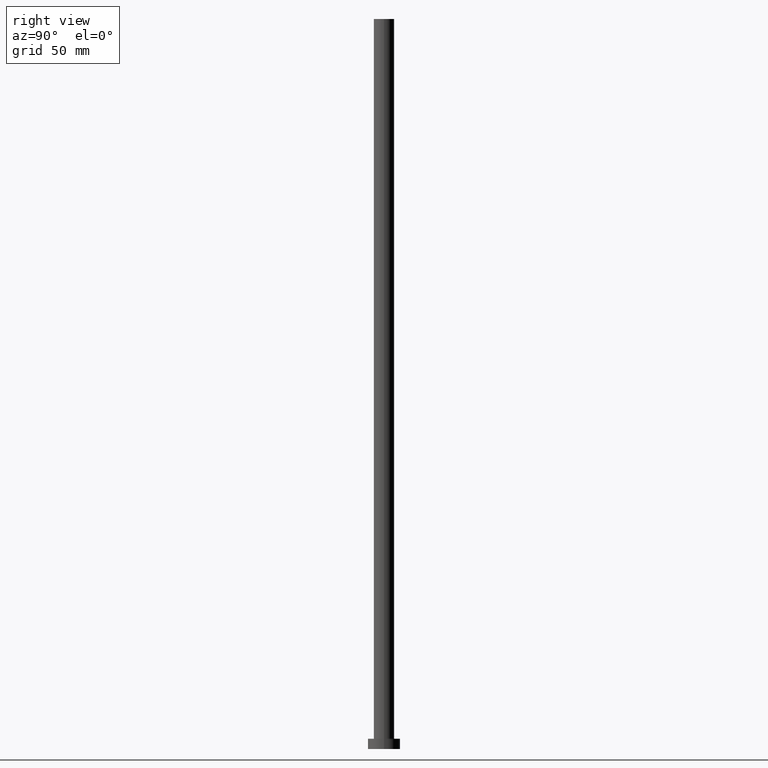
[diagram: clean part render]
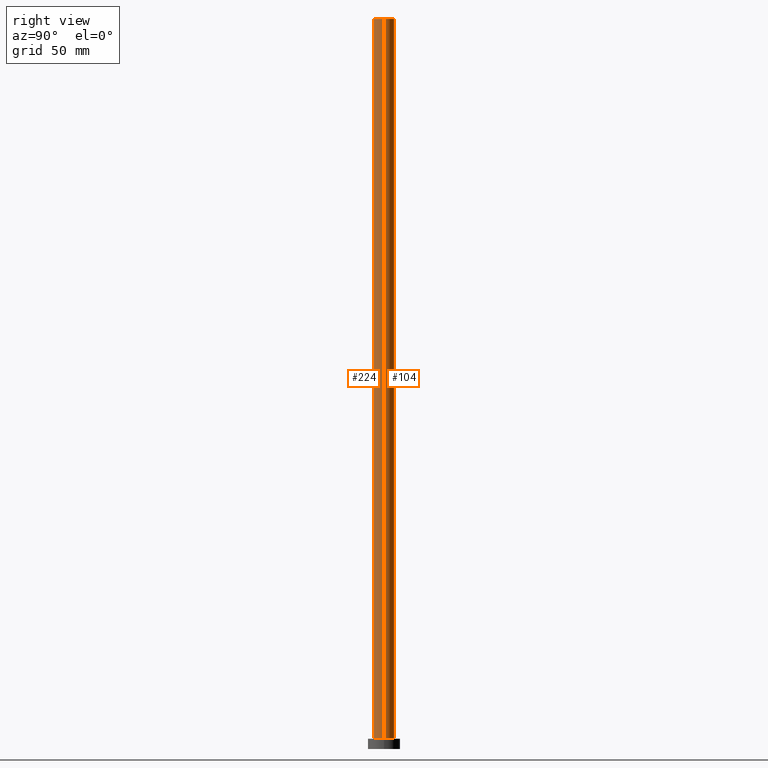
[diagram: same view with one multi-face feature highlighted, each face labeled with its STEP entity id]
A machine part, right view. The highlighted faces form ONE feature: a constant-radius fillet chain: 2 tangent blend faces with common blend radius 7 mm. The faces share edges in the B-rep.
Their STEP definitions:
[1] entity #224 (Cylinder):
#12 = DIRECTION ( 'NONE',  ( 1.000000000000000000, 0.000000000000000000, 0.000000000000000000 ) ) ;
#25 = CARTESIAN_POINT ( 'NONE',  ( 0.000000000000000000, 0.000000000000000000, 500.0000000000000000 ) ) ;
#29 = LINE ( 'NONE', #173, #60 ) ;
#32 = DIRECTION ( 'NONE',  ( 0.000000000000000000, 0.000000000000000000, 1.000000000000000000 ) ) ;
#39 = CYLINDRICAL_SURFACE ( 'NONE', #75, 7.000000000000000888 ) ;
#46 = CARTESIAN_POINT ( 'NONE',  ( 7.000000000000000888, 8.572527594031474176E-16, 7.000000000000000000 ) ) ;
#51 = CARTESIAN_POINT ( 'NONE',  ( -7.000000000000000888, 0.000000000000000000, 500.0000000000000000 ) ) ;
#55 = LINE ( 'NONE', #194, #208 ) ;
#60 = VECTOR ( 'NONE', #101, 1000.000000000000000 ) ;
#69 = DIRECTION ( 'NONE',  ( 0.000000000000000000, 0.000000000000000000, 1.000000000000000000 ) ) ;
#75 = AXIS2_PLACEMENT_3D ( 'NONE', #25, #203, #79 ) ;
#77 = AXIS2_PLACEMENT_3D ( 'NONE', #254, #69, #193 ) ;
#79 = DIRECTION ( 'NONE',  ( -1.000000000000000000, 0.000000000000000000, 0.000000000000000000 ) ) ;
#81 = EDGE_CURVE ( 'NONE', #105, #233, #180, .T. ) ;
#84 = EDGE_CURVE ( 'NONE', #97, #105, #29, .T. ) ;
#87 = CARTESIAN_POINT ( 'NONE',  ( -7.000000000000000888, 0.000000000000000000, 7.000000000000000000 ) ) ;
#89 = EDGE_LOOP ( 'NONE', ( #192, #238, #205, #209 ) ) ;
#97 = VERTEX_POINT ( 'NONE', #51 ) ;
#101 = DIRECTION ( 'NONE',  ( -0.000000000000000000, -0.000000000000000000, -1.000000000000000000 ) ) ;
#105 = VERTEX_POINT ( 'NONE', #87 ) ;
#109 = EDGE_CURVE ( 'NONE', #97, #225, #112, .T. ) ;
#112 = CIRCLE ( 'NONE', #77, 7.000000000000000888 ) ;
#142 = EDGE_CURVE ( 'NONE', #225, #233, #55, .T. ) ;
#173 = CARTESIAN_POINT ( 'NONE',  ( -7.000000000000000888, 0.000000000000000000, 500.0000000000000000 ) ) ;
#180 = CIRCLE ( 'NONE', #248, 7.000000000000000888 ) ;
#184 = CARTESIAN_POINT ( 'NONE',  ( 7.000000000000000888, 8.572527594031474176E-16, 500.0000000000000000 ) ) ;
#192 = ORIENTED_EDGE ( 'NONE', *, *, #142, .F. ) ;
#193 = DIRECTION ( 'NONE',  ( 1.000000000000000000, 0.000000000000000000, 0.000000000000000000 ) ) ;
#194 = CARTESIAN_POINT ( 'NONE',  ( 7.000000000000000888, 8.572527594031474176E-16, 500.0000000000000000 ) ) ;
#197 = DIRECTION ( 'NONE',  ( -0.000000000000000000, -0.000000000000000000, -1.000000000000000000 ) ) ;
#202 = FACE_OUTER_BOUND ( 'NONE', #89, .T. ) ;
#203 = DIRECTION ( 'NONE',  ( -0.000000000000000000, -0.000000000000000000, -1.000000000000000000 ) ) ;
#205 = ORIENTED_EDGE ( 'NONE', *, *, #84, .T. ) ;
#208 = VECTOR ( 'NONE', #197, 1000.000000000000000 ) ;
#209 = ORIENTED_EDGE ( 'NONE', *, *, #81, .T. ) ;
#224 = ADVANCED_FACE ( 'NONE', ( #202 ), #39, .T. ) ;
#225 = VERTEX_POINT ( 'NONE', #184 ) ;
#233 = VERTEX_POINT ( 'NONE', #46 ) ;
#238 = ORIENTED_EDGE ( 'NONE', *, *, #109, .F. ) ;
#248 = AXIS2_PLACEMENT_3D ( 'NONE', #251, #32, #12 ) ;
#251 = CARTESIAN_POINT ( 'NONE',  ( 0.000000000000000000, 0.000000000000000000, 7.000000000000000000 ) ) ;
#254 = CARTESIAN_POINT ( 'NONE',  ( 0.000000000000000000, 0.000000000000000000, 500.0000000000000000 ) ) ;
[2] entity #104 (Cylinder):
#3 = AXIS2_PLACEMENT_3D ( 'NONE', #177, #134, #78 ) ;
#22 = ORIENTED_EDGE ( 'NONE', *, *, #210, .F. ) ;
#24 = DIRECTION ( 'NONE',  ( 0.000000000000000000, 0.000000000000000000, 1.000000000000000000 ) ) ;
#29 = LINE ( 'NONE', #173, #60 ) ;
#31 = DIRECTION ( 'NONE',  ( -0.000000000000000000, -0.000000000000000000, -1.000000000000000000 ) ) ;
#46 = CARTESIAN_POINT ( 'NONE',  ( 7.000000000000000888, 8.572527594031474176E-16, 7.000000000000000000 ) ) ;
#50 = ORIENTED_EDGE ( 'NONE', *, *, #142, .T. ) ;
#51 = CARTESIAN_POINT ( 'NONE',  ( -7.000000000000000888, 0.000000000000000000, 500.0000000000000000 ) ) ;
#52 = CYLINDRICAL_SURFACE ( 'NONE', #155, 7.000000000000000888 ) ;
#55 = LINE ( 'NONE', #194, #208 ) ;
#57 = CIRCLE ( 'NONE', #3, 7.000000000000000888 ) ;
#59 = DIRECTION ( 'NONE',  ( 1.000000000000000000, 0.000000000000000000, 0.000000000000000000 ) ) ;
#60 = VECTOR ( 'NONE', #101, 1000.000000000000000 ) ;
#78 = DIRECTION ( 'NONE',  ( 1.000000000000000000, 0.000000000000000000, 0.000000000000000000 ) ) ;
#84 = EDGE_CURVE ( 'NONE', #97, #105, #29, .T. ) ;
#87 = CARTESIAN_POINT ( 'NONE',  ( -7.000000000000000888, 0.000000000000000000, 7.000000000000000000 ) ) ;
#97 = VERTEX_POINT ( 'NONE', #51 ) ;
#101 = DIRECTION ( 'NONE',  ( -0.000000000000000000, -0.000000000000000000, -1.000000000000000000 ) ) ;
#103 = DIRECTION ( 'NONE',  ( -1.000000000000000000, 0.000000000000000000, 0.000000000000000000 ) ) ;
#104 = ADVANCED_FACE ( 'NONE', ( #127 ), #52, .T. ) ;
#105 = VERTEX_POINT ( 'NONE', #87 ) ;
#127 = FACE_OUTER_BOUND ( 'NONE', #201, .T. ) ;
#134 = DIRECTION ( 'NONE',  ( 0.000000000000000000, 0.000000000000000000, 1.000000000000000000 ) ) ;
#142 = EDGE_CURVE ( 'NONE', #225, #233, #55, .T. ) ;
#150 = ORIENTED_EDGE ( 'NONE', *, *, #84, .F. ) ;
#155 = AXIS2_PLACEMENT_3D ( 'NONE', #207, #31, #103 ) ;
#173 = CARTESIAN_POINT ( 'NONE',  ( -7.000000000000000888, 0.000000000000000000, 500.0000000000000000 ) ) ;
#177 = CARTESIAN_POINT ( 'NONE',  ( 0.000000000000000000, 0.000000000000000000, 500.0000000000000000 ) ) ;
#178 = AXIS2_PLACEMENT_3D ( 'NONE', #179, #24, #59 ) ;
#179 = CARTESIAN_POINT ( 'NONE',  ( 0.000000000000000000, 0.000000000000000000, 7.000000000000000000 ) ) ;
#184 = CARTESIAN_POINT ( 'NONE',  ( 7.000000000000000888, 8.572527594031474176E-16, 500.0000000000000000 ) ) ;
#189 = ORIENTED_EDGE ( 'NONE', *, *, #231, .T. ) ;
#194 = CARTESIAN_POINT ( 'NONE',  ( 7.000000000000000888, 8.572527594031474176E-16, 500.0000000000000000 ) ) ;
#197 = DIRECTION ( 'NONE',  ( -0.000000000000000000, -0.000000000000000000, -1.000000000000000000 ) ) ;
#201 = EDGE_LOOP ( 'NONE', ( #22, #50, #189, #150 ) ) ;
#207 = CARTESIAN_POINT ( 'NONE',  ( 0.000000000000000000, 0.000000000000000000, 500.0000000000000000 ) ) ;
#208 = VECTOR ( 'NONE', #197, 1000.000000000000000 ) ;
#210 = EDGE_CURVE ( 'NONE', #225, #97, #57, .T. ) ;
#223 = CIRCLE ( 'NONE', #178, 7.000000000000000888 ) ;
#225 = VERTEX_POINT ( 'NONE', #184 ) ;
#231 = EDGE_CURVE ( 'NONE', #233, #105, #223, .T. ) ;
#233 = VERTEX_POINT ( 'NONE', #46 ) ;